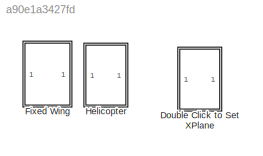
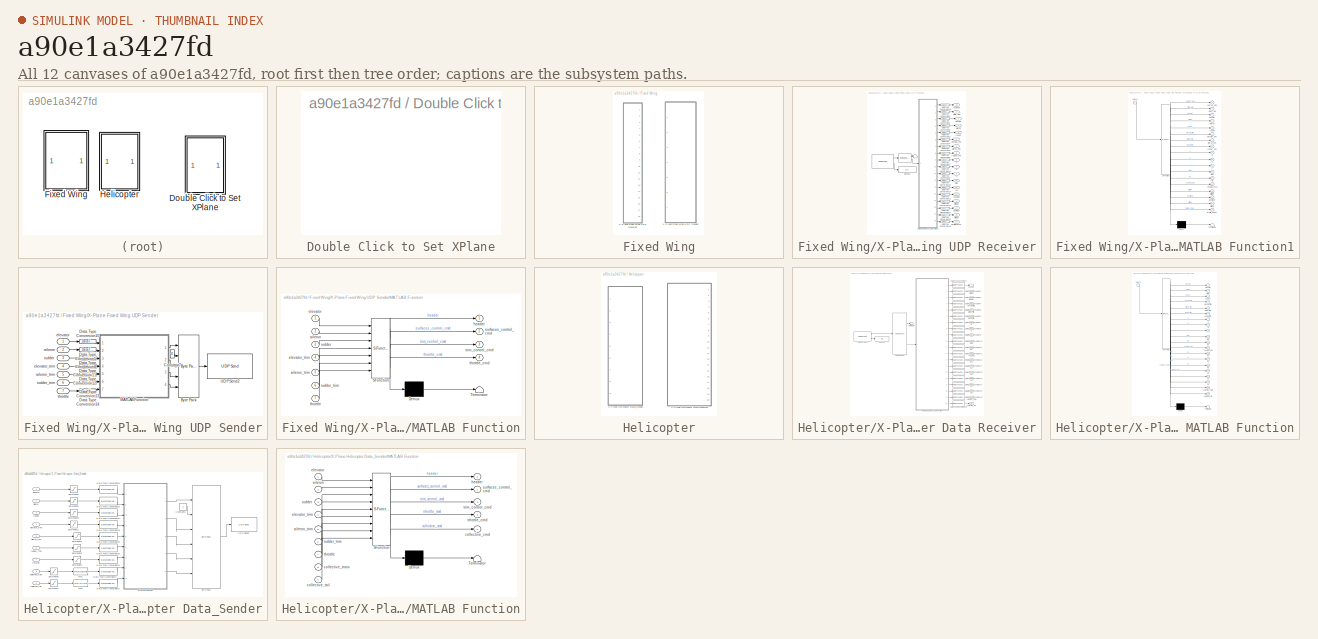
[diagram: thumbnail index - all 12 canvases of the model, root first then tree order]
MODEL slx_a90e1a3427fd
KIND library
BLOCK [SubSystem] Double Click to Set XPlane
  FunctionWithSeparateData = off
  MaskHideContents = off
  MinAlgLoopOccurrences = off
  Opaque = off
  OpenFcn = selecting_parameters()
  Ports = []
  PropExecContextOutsideSubsystem = off
  RTWSystemCode = Auto
  RequestExecContextInheritance = off
BLOCK [SubSystem] Fixed Wing
  FunctionWithSeparateData = off
  MaskHideContents = off
  MinAlgLoopOccurrences = off
  Opaque = off
  Ports = []
  PropExecContextOutsideSubsystem = off
  RTWSystemCode = Auto
  RequestExecContextInheritance = off
BLOCK [SubSystem] Fixed Wing/X-Plane Fixed Wing UDP Receiver
  FunctionWithSeparateData = off
  MaskHideContents = off
  MinAlgLoopOccurrences = off
  Opaque = off
  Ports = [0, 18]
  PropExecContextOutsideSubsystem = off
  RTWSystemCode = Auto
  RequestExecContextInheritance = off
BLOCK [Terminator] Fixed Wing/X-Plane Fixed Wing UDP Receiver/ 
BLOCK [Reference] Fixed Wing/X-Plane Fixed Wing UDP Receiver/      REF=dspnetwork/UDP Receive
  Ports = [0, 2]
  SourceBlock = dspnetwork/UDP Receive
  SourceType = UDP Receive
  blockPlatform = WINDOWS
  blockingTime = 20
  dims = 293
  isVarSize = off
  localPort = port_number
  localURL = '0.0.0.0'
  recvBufferSize = 8192
  remotePort = -1
  remoteURL = ip_adress
  sampletime = 0.02
  showBlockingTime = on
  signalDatatype = uint8
BLOCK [Reference] Fixed Wing/X-Plane Fixed Wing UDP Receiver/       REF=etargetslib/Byte Unpack
  Ports = [1, 2]
  SourceBlock = etargetslib/Byte Unpack
  SourceType = Byte Unpack
  byteAlign = 1
  datatypes = {'uint8','single'}
  dimensions = {5,[9,8]}
BLOCK [Outport] Fixed Wing/X-Plane Fixed Wing UDP Receiver/AirSpeed
  IconDisplay = Port number
  Port = 18
BLOCK [Outport] Fixed Wing/X-Plane Fixed Wing UDP Receiver/Climb_rate
  IconDisplay = Port number
  Port = 17
BLOCK [DataTypeConversion] Fixed Wing/X-Plane Fixed Wing UDP Receiver/Data Type Conversion1
  OutDataTypeStr = double
  RndMeth = Floor
BLOCK [DataTypeConversion] Fixed Wing/X-Plane Fixed Wing UDP Receiver/Data Type Conversion10
  OutDataTypeStr = double
  RndMeth = Floor
BLOCK [DataTypeConversion] Fixed Wing/X-Plane Fixed Wing UDP Receiver/Data Type Conversion11
  OutDataTypeStr = double
  RndMeth = Floor
BLOCK [DataTypeConversion] Fixed Wing/X-Plane Fixed Wing UDP Receiver/Data Type Conversion12
  OutDataTypeStr = double
  RndMeth = Floor
BLOCK [DataTypeConversion] Fixed Wing/X-Plane Fixed Wing UDP Receiver/Data Type Conversion13
  OutDataTypeStr = double
  RndMeth = Floor
BLOCK [DataTypeConversion] Fixed Wing/X-Plane Fixed Wing UDP Receiver/Data Type Conversion14
  OutDataTypeStr = double
  RndMeth = Floor
BLOCK [DataTypeConversion] Fixed Wing/X-Plane Fixed Wing UDP Receiver/Data Type Conversion15
  OutDataTypeStr = double
  RndMeth = Floor
BLOCK [DataTypeConversion] Fixed Wing/X-Plane Fixed Wing UDP Receiver/Data Type Conversion16
  OutDataTypeStr = double
  RndMeth = Floor
BLOCK [DataTypeConversion] Fixed Wing/X-Plane Fixed Wing UDP Receiver/Data Type Conversion17
  OutDataTypeStr = double
  RndMeth = Floor
BLOCK [DataTypeConversion] Fixed Wing/X-Plane Fixed Wing UDP Receiver/Data Type Conversion2
  OutDataTypeStr = double
  RndMeth = Floor
BLOCK [DataTypeConversion] Fixed Wing/X-Plane Fixed Wing UDP Receiver/Data Type Conversion21
  OutDataTypeStr = double
  RndMeth = Floor
BLOCK [DataTypeConversion] Fixed Wing/X-Plane Fixed Wing UDP Receiver/Data Type Conversion3
  OutDataTypeStr = double
  RndMeth = Floor
BLOCK [DataTypeConversion] Fixed Wing/X-Plane Fixed Wing UDP Receiver/Data Type Conversion4
  OutDataTypeStr = double
  RndMeth = Floor
BLOCK [DataTypeConversion] Fixed Wing/X-Plane Fixed Wing UDP Receiver/Data Type Conversion5
  OutDataTypeStr = double
  RndMeth = Floor
BLOCK [DataTypeConversion] Fixed Wing/X-Plane Fixed Wing UDP Receiver/Data Type Conversion6
  OutDataTypeStr = double
  RndMeth = Floor
BLOCK [DataTypeConversion] Fixed Wing/X-Plane Fixed Wing UDP Receiver/Data Type Conversion7
  OutDataTypeStr = double
  RndMeth = Floor
BLOCK [DataTypeConversion] Fixed Wing/X-Plane Fixed Wing UDP Receiver/Data Type Conversion8
  OutDataTypeStr = double
  RndMeth = Floor
BLOCK [DataTypeConversion] Fixed Wing/X-Plane Fixed Wing UDP Receiver/Data Type Conversion9
  OutDataTypeStr = double
  RndMeth = Floor
BLOCK [Display] Fixed Wing/X-Plane Fixed Wing UDP Receiver/Debug1 
  Decimation = 1
  Lockdown = off
  Ports = [1]
BLOCK [SubSystem] Fixed Wing/X-Plane Fixed Wing UDP Receiver/Embedded MATLAB Function1
  ErrorFcn = Stateflow.Translate.translate
  FunctionWithSeparateData = off
  MaskHideContents = off
  MinAlgLoopOccurrences = off
  Opaque = off
  PermitHierarchicalResolution = ExplicitOnly
  Ports = [1, 18]
  PropExecContextOutsideSubsystem = off
  RTWSystemCode = Auto
  RequestExecContextInheritance = off
  SFBlockType = MATLAB Function
  TreatAsAtomicUnit = on
BLOCK [Demux] Fixed Wing/X-Plane Fixed Wing UDP Receiver/Embedded MATLAB Function1/ Demux 
  Outputs = 1
  Ports = [1, 1]
BLOCK [S-Function] Fixed Wing/X-Plane Fixed Wing UDP Receiver/Embedded MATLAB Function1/ SFunction 
  EnableBusSupport = on
  FunctionName = sf_sfun
  PortCounts = [1 19]
  Ports = [1, 19]
  Tag = Stateflow S-Function X_Plane_Communication_Library 1
BLOCK [Terminator] Fixed Wing/X-Plane Fixed Wing UDP Receiver/Embedded MATLAB Function1/ Terminator 
BLOCK [Outport] Fixed Wing/X-Plane Fixed Wing UDP Receiver/Embedded MATLAB Function1/aileron
  IconDisplay = Port number
  Port = 4
BLOCK [Outport] Fixed Wing/X-Plane Fixed Wing UDP Receiver/Embedded MATLAB Function1/aileron_trim
  IconDisplay = Port number
  Port = 7
BLOCK [Outport] Fixed Wing/X-Plane Fixed Wing UDP Receiver/Embedded MATLAB Function1/altitude
  IconDisplay = Port number
  Port = 17
BLOCK [Outport] Fixed Wing/X-Plane Fixed Wing UDP Receiver/Embedded MATLAB Function1/climb_rate
  IconDisplay = Port number
  Port = 2
BLOCK [Inport] Fixed Wing/X-Plane Fixed Wing UDP Receiver/Embedded MATLAB Function1/data_in
  IconDisplay = Port number
BLOCK [Outport] Fixed Wing/X-Plane Fixed Wing UDP Receiver/Embedded MATLAB Function1/elevator
  IconDisplay = Port number
  Port = 3
BLOCK [Outport] Fixed Wing/X-Plane Fixed Wing UDP Receiver/Embedded MATLAB Function1/elevator_trim
  IconDisplay = Port number
  Port = 6
BLOCK [Outport] Fixed Wing/X-Plane Fixed Wing UDP Receiver/Embedded MATLAB Function1/heading_true
  IconDisplay = Port number
  Port = 14
BLOCK [Outport] Fixed Wing/X-Plane Fixed Wing UDP Receiver/Embedded MATLAB Function1/latitutde
  IconDisplay = Port number
  Port = 15
BLOCK [Outport] Fixed Wing/X-Plane Fixed Wing UDP Receiver/Embedded MATLAB Function1/longitude
  IconDisplay = Port number
  Port = 16
BLOCK [Outport] Fixed Wing/X-Plane Fixed Wing UDP Receiver/Embedded MATLAB Function1/p
  IconDisplay = Port number
  Port = 10
BLOCK [Outport] Fixed Wing/X-Plane Fixed Wing UDP Receiver/Embedded MATLAB Function1/pitch
  IconDisplay = Port number
  Port = 12
BLOCK [Outport] Fixed Wing/X-Plane Fixed Wing UDP Receiver/Embedded MATLAB Function1/q
  IconDisplay = Port number
  Port = 9
BLOCK [Outport] Fixed Wing/X-Plane Fixed Wing UDP Receiver/Embedded MATLAB Function1/r
  IconDisplay = Port number
  Port = 11
BLOCK [Outport] Fixed Wing/X-Plane Fixed Wing UDP Receiver/Embedded MATLAB Function1/roll
  IconDisplay = Port number
  Port = 13
BLOCK [Outport] Fixed Wing/X-Plane Fixed Wing UDP Receiver/Embedded MATLAB Function1/rudder
  IconDisplay = Port number
  Port = 5
BLOCK [Outport] Fixed Wing/X-Plane Fixed Wing UDP Receiver/Embedded MATLAB Function1/rudder_trim
  IconDisplay = Port number
  Port = 8
BLOCK [Outport] Fixed Wing/X-Plane Fixed Wing UDP Receiver/Embedded MATLAB Function1/throttle_actual
  IconDisplay = Port number
  Port = 18
BLOCK [Outport] Fixed Wing/X-Plane Fixed Wing UDP Receiver/Embedded MATLAB Function1/velTrue_ktas
  IconDisplay = Port number
BLOCK [Outport] Fixed Wing/X-Plane Fixed Wing UDP Receiver/aileron
  IconDisplay = Port number
  Port = 2
BLOCK [Outport] Fixed Wing/X-Plane Fixed Wing UDP Receiver/aileron_trim
  IconDisplay = Port number
  Port = 5
BLOCK [Outport] Fixed Wing/X-Plane Fixed Wing UDP Receiver/altitude
  IconDisplay = Port number
  Port = 15
BLOCK [Outport] Fixed Wing/X-Plane Fixed Wing UDP Receiver/elevator 
  IconDisplay = Port number
BLOCK [Outport] Fixed Wing/X-Plane Fixed Wing UDP Receiver/elevator_trim
  IconDisplay = Port number
  Port = 4
BLOCK [Outport] Fixed Wing/X-Plane Fixed Wing UDP Receiver/heading
  IconDisplay = Port number
  Port = 12
BLOCK [Outport] Fixed Wing/X-Plane Fixed Wing UDP Receiver/latitude
  IconDisplay = Port number
  Port = 13
BLOCK [Outport] Fixed Wing/X-Plane Fixed Wing UDP Receiver/longitude
  IconDisplay = Port number
  Port = 14
BLOCK [Outport] Fixed Wing/X-Plane Fixed Wing UDP Receiver/p
  IconDisplay = Port number
  Port = 8
BLOCK [Outport] Fixed Wing/X-Plane Fixed Wing UDP Receiver/pitch
  IconDisplay = Port number
  Port = 10
BLOCK [Outport] Fixed Wing/X-Plane Fixed Wing UDP Receiver/q
  IconDisplay = Port number
  Port = 7
BLOCK [Outport] Fixed Wing/X-Plane Fixed Wing UDP Receiver/r
  IconDisplay = Port number
  Port = 9
BLOCK [Outport] Fixed Wing/X-Plane Fixed Wing UDP Receiver/roll
  IconDisplay = Port number
  Port = 11
BLOCK [Outport] Fixed Wing/X-Plane Fixed Wing UDP Receiver/rudder
  IconDisplay = Port number
  Port = 3
BLOCK [Outport] Fixed Wing/X-Plane Fixed Wing UDP Receiver/rudder_trim
  IconDisplay = Port number
  Port = 6
BLOCK [Outport] Fixed Wing/X-Plane Fixed Wing UDP Receiver/throttle sensor
  IconDisplay = Port number
  Port = 16
BLOCK [SubSystem] Fixed Wing/X-Plane Fixed Wing UDP Sender
  FunctionWithSeparateData = off
  MaskHideContents = off
  MinAlgLoopOccurrences = off
  Opaque = off
  Ports = [7]
  PropExecContextOutsideSubsystem = off
  RTWSystemCode = Auto
  RequestExecContextInheritance = off
BLOCK [Reference] Fixed Wing/X-Plane Fixed Wing UDP Sender/Byte Pack  REF=etargetslib/Byte Pack
  Ports = [5, 1]
  SourceBlock = etargetslib/Byte Pack
  SourceType = Byte pack
  byteAlign = 1
  datatypes = {'single','uint8','single','single','single'}
BLOCK [Constant] Fixed Wing/X-Plane Fixed Wing UDP Sender/Constant7
  OutDataTypeStr = uint8
  Value = 0
BLOCK [DataTypeConversion] Fixed Wing/X-Plane Fixed Wing UDP Sender/Data Type Conversion10
  OutDataTypeStr = single
  RndMeth = Floor
BLOCK [DataTypeConversion] Fixed Wing/X-Plane Fixed Wing UDP Sender/Data Type Conversion11
  OutDataTypeStr = single
  RndMeth = Floor
BLOCK [DataTypeConversion] Fixed Wing/X-Plane Fixed Wing UDP Sender/Data Type Conversion12
  OutDataTypeStr = single
  RndMeth = Floor
BLOCK [DataTypeConversion] Fixed Wing/X-Plane Fixed Wing UDP Sender/Data Type Conversion13
  OutDataTypeStr = single
  RndMeth = Floor
BLOCK [DataTypeConversion] Fixed Wing/X-Plane Fixed Wing UDP Sender/Data Type Conversion14
  OutDataTypeStr = single
  RndMeth = Floor
BLOCK [DataTypeConversion] Fixed Wing/X-Plane Fixed Wing UDP Sender/Data Type Conversion5
  OutDataTypeStr = single
  RndMeth = Floor
BLOCK [DataTypeConversion] Fixed Wing/X-Plane Fixed Wing UDP Sender/Data Type Conversion8
  OutDataTypeStr = single
  RndMeth = Floor
BLOCK [SubSystem] Fixed Wing/X-Plane Fixed Wing UDP Sender/MATLAB Function
  ErrorFcn = Stateflow.Translate.translate
  FunctionWithSeparateData = off
  MaskHideContents = off
  MinAlgLoopOccurrences = off
  Opaque = off
  PermitHierarchicalResolution = ExplicitOnly
  Ports = [7, 4]
  PropExecContextOutsideSubsystem = off
  RTWSystemCode = Auto
  RequestExecContextInheritance = off
  SFBlockType = MATLAB Function
  TreatAsAtomicUnit = on
BLOCK [Demux] Fixed Wing/X-Plane Fixed Wing UDP Sender/MATLAB Function/ Demux 
  Outputs = 1
  Ports = [1, 1]
BLOCK [S-Function] Fixed Wing/X-Plane Fixed Wing UDP Sender/MATLAB Function/ SFunction 
  EnableBusSupport = on
  FunctionName = sf_sfun
  PortCounts = [7 5]
  Ports = [7, 5]
  Tag = Stateflow S-Function X_Plane_Communication_Library 4
BLOCK [Terminator] Fixed Wing/X-Plane Fixed Wing UDP Sender/MATLAB Function/ Terminator 
BLOCK [Inport] Fixed Wing/X-Plane Fixed Wing UDP Sender/MATLAB Function/aileron
  IconDisplay = Port number
  Port = 2
BLOCK [Inport] Fixed Wing/X-Plane Fixed Wing UDP Sender/MATLAB Function/aileron_trim
  IconDisplay = Port number
  Port = 5
BLOCK [Inport] Fixed Wing/X-Plane Fixed Wing UDP Sender/MATLAB Function/elevator
  IconDisplay = Port number
BLOCK [Inport] Fixed Wing/X-Plane Fixed Wing UDP Sender/MATLAB Function/elevator_trim
  IconDisplay = Port number
  Port = 4
BLOCK [Outport] Fixed Wing/X-Plane Fixed Wing UDP Sender/MATLAB Function/header
  IconDisplay = Port number
BLOCK [Inport] Fixed Wing/X-Plane Fixed Wing UDP Sender/MATLAB Function/rudder
  IconDisplay = Port number
  Port = 3
BLOCK [Inport] Fixed Wing/X-Plane Fixed Wing UDP Sender/MATLAB Function/rudder_trim
  IconDisplay = Port number
  Port = 6
BLOCK [Outport] Fixed Wing/X-Plane Fixed Wing UDP Sender/MATLAB Function/surfaces_control_cmd
  IconDisplay = Port number
  Port = 2
BLOCK [Inport] Fixed Wing/X-Plane Fixed Wing UDP Sender/MATLAB Function/throttle
  IconDisplay = Port number
  Port = 7
BLOCK [Outport] Fixed Wing/X-Plane Fixed Wing UDP Sender/MATLAB Function/throttle_cmd
  IconDisplay = Port number
  Port = 4
BLOCK [Outport] Fixed Wing/X-Plane Fixed Wing UDP Sender/MATLAB Function/trim_control_cmd
  IconDisplay = Port number
  Port = 3
BLOCK [Reference] Fixed Wing/X-Plane Fixed Wing UDP Sender/UDP Send2  REF=dspnetwork/UDP Send
  Ports = [1]
  SourceBlock = dspnetwork/UDP Send
  SourceType = UDP Send
  blockPlatform = HOST
  localPort = -1
  localPortSource = Automatically determine
  localURL = '255.255.255.255'
  remotePort = port_number
  remoteURL = ip_adress
  sampletime = -1
  separateLengthPort = 0
BLOCK [Inport] Fixed Wing/X-Plane Fixed Wing UDP Sender/aileron
  IconDisplay = Port number
  Port = 2
BLOCK [Inport] Fixed Wing/X-Plane Fixed Wing UDP Sender/aileron_trim
  IconDisplay = Port number
  Port = 5
BLOCK [Inport] Fixed Wing/X-Plane Fixed Wing UDP Sender/elevator
  IconDisplay = Port number
BLOCK [Inport] Fixed Wing/X-Plane Fixed Wing UDP Sender/elevator_trim
  IconDisplay = Port number
  Port = 4
BLOCK [Inport] Fixed Wing/X-Plane Fixed Wing UDP Sender/rudder
  IconDisplay = Port number
  Port = 3
BLOCK [Inport] Fixed Wing/X-Plane Fixed Wing UDP Sender/rudder_trim
  IconDisplay = Port number
  Port = 6
BLOCK [Inport] Fixed Wing/X-Plane Fixed Wing UDP Sender/throttle
  IconDisplay = Port number
  Port = 7
BLOCK [SubSystem] Helicopter
  FunctionWithSeparateData = off
  MaskHideContents = off
  MinAlgLoopOccurrences = off
  Opaque = off
  Ports = []
  PropExecContextOutsideSubsystem = off
  RTWSystemCode = Auto
  RequestExecContextInheritance = off
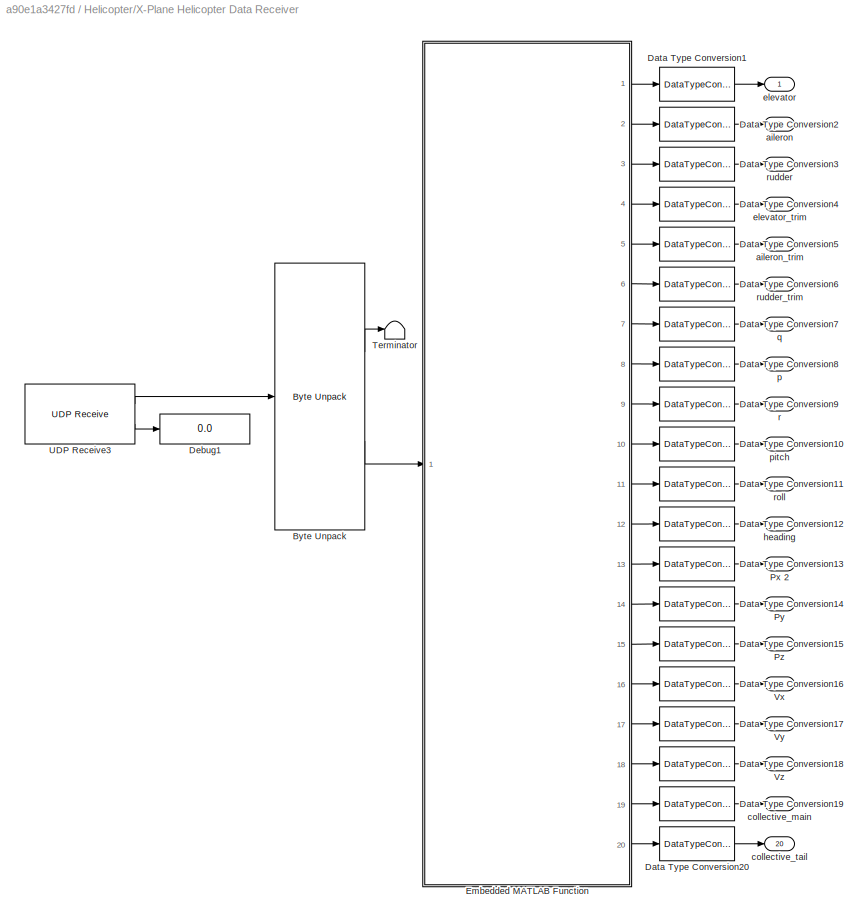
BLOCK [SubSystem] Helicopter/X-Plane Helicopter Data Receiver
  AncestorBlock = DU2SRI_Heli_Sim/X-Plane Communication Blockset\n/X-Plane Data Receiver
  FunctionWithSeparateData = off
  MaskHideContents = off
  MinAlgLoopOccurrences = off
  Opaque = off
  Ports = [0, 20]
  PropExecContextOutsideSubsystem = off
  RTWSystemCode = Auto
  RequestExecContextInheritance = off
BLOCK [Reference] Helicopter/X-Plane Helicopter Data Receiver/Byte Unpack  REF=etargetslib/Byte Unpack
  Ports = [1, 2]
  SourceBlock = etargetslib/Byte Unpack
  SourceType = Byte Unpack
  byteAlign = 1
  datatypes = {'uint8','single'}
  dimensions = {5,[9,6]}
BLOCK [DataTypeConversion] Helicopter/X-Plane Helicopter Data Receiver/Data Type Conversion1
  OutDataTypeStr = double
  RndMeth = Floor
BLOCK [DataTypeConversion] Helicopter/X-Plane Helicopter Data Receiver/Data Type Conversion10
  OutDataTypeStr = double
  RndMeth = Floor
BLOCK [DataTypeConversion] Helicopter/X-Plane Helicopter Data Receiver/Data Type Conversion11
  OutDataTypeStr = double
  RndMeth = Floor
BLOCK [DataTypeConversion] Helicopter/X-Plane Helicopter Data Receiver/Data Type Conversion12
  OutDataTypeStr = double
  RndMeth = Floor
BLOCK [DataTypeConversion] Helicopter/X-Plane Helicopter Data Receiver/Data Type Conversion13
  OutDataTypeStr = double
  RndMeth = Floor
BLOCK [DataTypeConversion] Helicopter/X-Plane Helicopter Data Receiver/Data Type Conversion14
  OutDataTypeStr = double
  RndMeth = Floor
BLOCK [DataTypeConversion] Helicopter/X-Plane Helicopter Data Receiver/Data Type Conversion15
  OutDataTypeStr = double
  RndMeth = Floor
BLOCK [DataTypeConversion] Helicopter/X-Plane Helicopter Data Receiver/Data Type Conversion16
  OutDataTypeStr = double
  RndMeth = Floor
BLOCK [DataTypeConversion] Helicopter/X-Plane Helicopter Data Receiver/Data Type Conversion17
  OutDataTypeStr = double
  RndMeth = Floor
BLOCK [DataTypeConversion] Helicopter/X-Plane Helicopter Data Receiver/Data Type Conversion18
  OutDataTypeStr = double
  RndMeth = Floor
BLOCK [DataTypeConversion] Helicopter/X-Plane Helicopter Data Receiver/Data Type Conversion19
  OutDataTypeStr = double
  RndMeth = Floor
BLOCK [DataTypeConversion] Helicopter/X-Plane Helicopter Data Receiver/Data Type Conversion2
  OutDataTypeStr = double
  RndMeth = Floor
BLOCK [DataTypeConversion] Helicopter/X-Plane Helicopter Data Receiver/Data Type Conversion20
  OutDataTypeStr = double
  RndMeth = Floor
BLOCK [DataTypeConversion] Helicopter/X-Plane Helicopter Data Receiver/Data Type Conversion3
  OutDataTypeStr = double
  RndMeth = Floor
BLOCK [DataTypeConversion] Helicopter/X-Plane Helicopter Data Receiver/Data Type Conversion4
  OutDataTypeStr = double
  RndMeth = Floor
BLOCK [DataTypeConversion] Helicopter/X-Plane Helicopter Data Receiver/Data Type Conversion5
  OutDataTypeStr = double
  RndMeth = Floor
BLOCK [DataTypeConversion] Helicopter/X-Plane Helicopter Data Receiver/Data Type Conversion6
  OutDataTypeStr = double
  RndMeth = Floor
BLOCK [DataTypeConversion] Helicopter/X-Plane Helicopter Data Receiver/Data Type Conversion7
  OutDataTypeStr = double
  RndMeth = Floor
BLOCK [DataTypeConversion] Helicopter/X-Plane Helicopter Data Receiver/Data Type Conversion8
  OutDataTypeStr = double
  RndMeth = Floor
BLOCK [DataTypeConversion] Helicopter/X-Plane Helicopter Data Receiver/Data Type Conversion9
  OutDataTypeStr = double
  RndMeth = Floor
BLOCK [Display] Helicopter/X-Plane Helicopter Data Receiver/Debug1 
  Decimation = 1
  Lockdown = off
  Ports = [1]
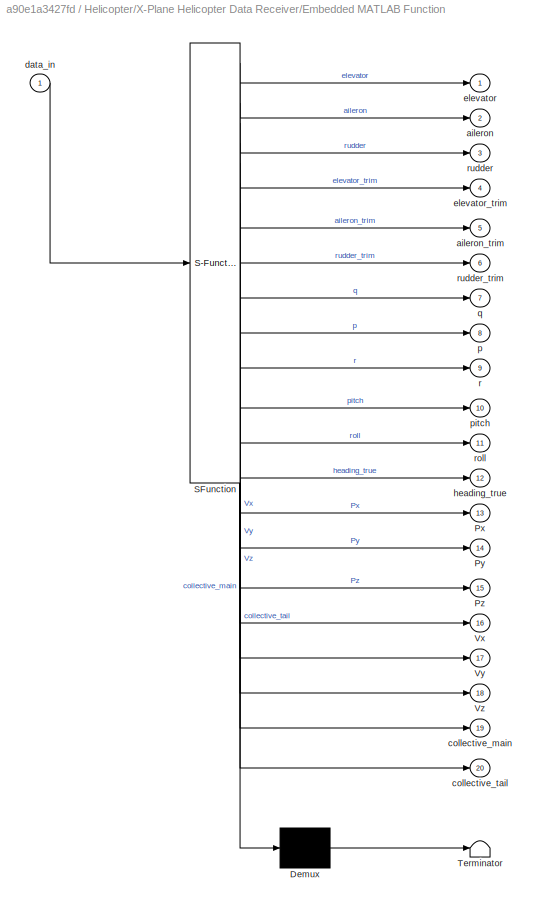
BLOCK [SubSystem] Helicopter/X-Plane Helicopter Data Receiver/Embedded MATLAB Function
  ErrorFcn = Stateflow.Translate.translate
  FunctionWithSeparateData = off
  MaskHideContents = off
  MinAlgLoopOccurrences = off
  Opaque = off
  PermitHierarchicalResolution = ExplicitOnly
  Ports = [1, 20]
  PropExecContextOutsideSubsystem = off
  RTWSystemCode = Auto
  RequestExecContextInheritance = off
  SFBlockType = MATLAB Function
  TreatAsAtomicUnit = on
BLOCK [Demux] Helicopter/X-Plane Helicopter Data Receiver/Embedded MATLAB Function/ Demux 
  Outputs = 1
  Ports = [1, 1]
BLOCK [S-Function] Helicopter/X-Plane Helicopter Data Receiver/Embedded MATLAB Function/ SFunction 
  EnableBusSupport = off
  FunctionName = sf_sfun
  PortCounts = [1 21]
  Ports = [1, 21]
  Tag = Stateflow S-Function X_Plane_Communication_Library 13
BLOCK [Terminator] Helicopter/X-Plane Helicopter Data Receiver/Embedded MATLAB Function/ Terminator 
BLOCK [Outport] Helicopter/X-Plane Helicopter Data Receiver/Embedded MATLAB Function/Px
  IconDisplay = Port number
  Port = 13
BLOCK [Outport] Helicopter/X-Plane Helicopter Data Receiver/Embedded MATLAB Function/Py
  IconDisplay = Port number
  Port = 14
BLOCK [Outport] Helicopter/X-Plane Helicopter Data Receiver/Embedded MATLAB Function/Pz
  IconDisplay = Port number
  Port = 15
BLOCK [Outport] Helicopter/X-Plane Helicopter Data Receiver/Embedded MATLAB Function/Vx
  IconDisplay = Port number
  Port = 16
BLOCK [Outport] Helicopter/X-Plane Helicopter Data Receiver/Embedded MATLAB Function/Vy
  IconDisplay = Port number
  Port = 17
BLOCK [Outport] Helicopter/X-Plane Helicopter Data Receiver/Embedded MATLAB Function/Vz
  IconDisplay = Port number
  Port = 18
BLOCK [Outport] Helicopter/X-Plane Helicopter Data Receiver/Embedded MATLAB Function/aileron
  IconDisplay = Port number
  Port = 2
BLOCK [Outport] Helicopter/X-Plane Helicopter Data Receiver/Embedded MATLAB Function/aileron_trim
  IconDisplay = Port number
  Port = 5
BLOCK [Outport] Helicopter/X-Plane Helicopter Data Receiver/Embedded MATLAB Function/collective_main
  IconDisplay = Port number
  Port = 19
BLOCK [Outport] Helicopter/X-Plane Helicopter Data Receiver/Embedded MATLAB Function/collective_tail
  IconDisplay = Port number
  Port = 20
BLOCK [Inport] Helicopter/X-Plane Helicopter Data Receiver/Embedded MATLAB Function/data_in
  IconDisplay = Port number
BLOCK [Outport] Helicopter/X-Plane Helicopter Data Receiver/Embedded MATLAB Function/elevator
  IconDisplay = Port number
BLOCK [Outport] Helicopter/X-Plane Helicopter Data Receiver/Embedded MATLAB Function/elevator_trim
  IconDisplay = Port number
  Port = 4
BLOCK [Outport] Helicopter/X-Plane Helicopter Data Receiver/Embedded MATLAB Function/heading_true
  IconDisplay = Port number
  Port = 12
BLOCK [Outport] Helicopter/X-Plane Helicopter Data Receiver/Embedded MATLAB Function/p
  IconDisplay = Port number
  Port = 8
BLOCK [Outport] Helicopter/X-Plane Helicopter Data Receiver/Embedded MATLAB Function/pitch
  IconDisplay = Port number
  Port = 10
BLOCK [Outport] Helicopter/X-Plane Helicopter Data Receiver/Embedded MATLAB Function/q
  IconDisplay = Port number
  Port = 7
BLOCK [Outport] Helicopter/X-Plane Helicopter Data Receiver/Embedded MATLAB Function/r
  IconDisplay = Port number
  Port = 9
BLOCK [Outport] Helicopter/X-Plane Helicopter Data Receiver/Embedded MATLAB Function/roll
  IconDisplay = Port number
  Port = 11
BLOCK [Outport] Helicopter/X-Plane Helicopter Data Receiver/Embedded MATLAB Function/rudder
  IconDisplay = Port number
  Port = 3
BLOCK [Outport] Helicopter/X-Plane Helicopter Data Receiver/Embedded MATLAB Function/rudder_trim
  IconDisplay = Port number
  Port = 6
BLOCK [Outport] Helicopter/X-Plane Helicopter Data Receiver/Px 2
  IconDisplay = Port number
  Port = 13
BLOCK [Outport] Helicopter/X-Plane Helicopter Data Receiver/Py
  IconDisplay = Port number
  Port = 14
BLOCK [Outport] Helicopter/X-Plane Helicopter Data Receiver/Pz
  IconDisplay = Port number
  Port = 15
BLOCK [Terminator] Helicopter/X-Plane Helicopter Data Receiver/Terminator
BLOCK [Reference] Helicopter/X-Plane Helicopter Data Receiver/UDP Receive3  REF=dspnetwork/UDP Receive
  Ports = [0, 2]
  SourceBlock = dspnetwork/UDP Receive
  SourceType = UDP Receive
  blockPlatform = WINDOWS
  blockingTime = 20
  dims = 221
  isVarSize = off
  localPort = port_number
  localURL = '0.0.0.0'
  recvBufferSize = 8192
  remotePort = -1
  remoteURL = ip_adress
  sampletime = 0
  showBlockingTime = on
  signalDatatype = uint8
BLOCK [Outport] Helicopter/X-Plane Helicopter Data Receiver/Vx
  IconDisplay = Port number
  Port = 16
BLOCK [Outport] Helicopter/X-Plane Helicopter Data Receiver/Vy
  IconDisplay = Port number
  Port = 17
BLOCK [Outport] Helicopter/X-Plane Helicopter Data Receiver/Vz
  IconDisplay = Port number
  Port = 18
BLOCK [Outport] Helicopter/X-Plane Helicopter Data Receiver/aileron
  IconDisplay = Port number
  Port = 2
BLOCK [Outport] Helicopter/X-Plane Helicopter Data Receiver/aileron_trim
  IconDisplay = Port number
  Port = 5
BLOCK [Outport] Helicopter/X-Plane Helicopter Data Receiver/collective_main
  IconDisplay = Port number
  Port = 19
BLOCK [Outport] Helicopter/X-Plane Helicopter Data Receiver/collective_tail
  IconDisplay = Port number
  Port = 20
BLOCK [Outport] Helicopter/X-Plane Helicopter Data Receiver/elevator 
  IconDisplay = Port number
BLOCK [Outport] Helicopter/X-Plane Helicopter Data Receiver/elevator_trim
  IconDisplay = Port number
  Port = 4
BLOCK [Outport] Helicopter/X-Plane Helicopter Data Receiver/heading
  IconDisplay = Port number
  Port = 12
BLOCK [Outport] Helicopter/X-Plane Helicopter Data Receiver/p
  IconDisplay = Port number
  Port = 8
BLOCK [Outport] Helicopter/X-Plane Helicopter Data Receiver/pitch
  IconDisplay = Port number
  Port = 10
BLOCK [Outport] Helicopter/X-Plane Helicopter Data Receiver/q
  IconDisplay = Port number
  Port = 7
BLOCK [Outport] Helicopter/X-Plane Helicopter Data Receiver/r
  IconDisplay = Port number
  Port = 9
BLOCK [Outport] Helicopter/X-Plane Helicopter Data Receiver/roll
  IconDisplay = Port number
  Port = 11
BLOCK [Outport] Helicopter/X-Plane Helicopter Data Receiver/rudder
  IconDisplay = Port number
  Port = 3
BLOCK [Outport] Helicopter/X-Plane Helicopter Data Receiver/rudder_trim
  IconDisplay = Port number
  Port = 6
BLOCK [SubSystem] Helicopter/X-Plane Helicopter Data_Sender
  AncestorBlock = DU2SRI_Heli_Sim/X-Plane Communication Blockset\n/X-Plane Data_Sender
  FunctionWithSeparateData = off
  MaskHideContents = off
  MinAlgLoopOccurrences = off
  Opaque = off
  Ports = [9]
  PropExecContextOutsideSubsystem = off
  RTWSystemCode = Auto
  RequestExecContextInheritance = off
BLOCK [Reference] Helicopter/X-Plane Helicopter Data_Sender/Byte Pack  REF=etargetslib/Byte Pack
  Ports = [6, 1]
  SourceBlock = etargetslib/Byte Pack
  SourceType = Byte pack
  byteAlign = 1
  datatypes = {'single','uint8','single','single','single','single'}
BLOCK [Constant] Helicopter/X-Plane Helicopter Data_Sender/Constant5
  OutDataTypeStr = uint8
  Value = 0
BLOCK [DataTypeConversion] Helicopter/X-Plane Helicopter Data_Sender/Data Type Conversion10
  OutDataTypeStr = single
  RndMeth = Floor
BLOCK [DataTypeConversion] Helicopter/X-Plane Helicopter Data_Sender/Data Type Conversion11
  OutDataTypeStr = single
  RndMeth = Floor
BLOCK [DataTypeConversion] Helicopter/X-Plane Helicopter Data_Sender/Data Type Conversion12
  OutDataTypeStr = single
  RndMeth = Floor
BLOCK [DataTypeConversion] Helicopter/X-Plane Helicopter Data_Sender/Data Type Conversion13
  OutDataTypeStr = single
  RndMeth = Floor
BLOCK [DataTypeConversion] Helicopter/X-Plane Helicopter Data_Sender/Data Type Conversion14
  OutDataTypeStr = single
  RndMeth = Floor
BLOCK [DataTypeConversion] Helicopter/X-Plane Helicopter Data_Sender/Data Type Conversion15
  OutDataTypeStr = single
  RndMeth = Floor
BLOCK [DataTypeConversion] Helicopter/X-Plane Helicopter Data_Sender/Data Type Conversion16
  OutDataTypeStr = single
  RndMeth = Floor
BLOCK [DataTypeConversion] Helicopter/X-Plane Helicopter Data_Sender/Data Type Conversion17
  OutDataTypeStr = single
  RndMeth = Floor
BLOCK [DataTypeConversion] Helicopter/X-Plane Helicopter Data_Sender/Data Type Conversion18
  OutDataTypeStr = single
  RndMeth = Floor
BLOCK [Fcn] Helicopter/X-Plane Helicopter Data_Sender/Fcn2
  Expr = u*max_col_main
BLOCK [Fcn] Helicopter/X-Plane Helicopter Data_Sender/Fcn3
  Expr = ((u+1)/2)*(max_col_tail-min_col_tail)+min_col_tail
BLOCK [SubSystem] Helicopter/X-Plane Helicopter Data_Sender/MATLAB Function
  ErrorFcn = Stateflow.Translate.translate
  FunctionWithSeparateData = off
  MaskHideContents = off
  MinAlgLoopOccurrences = off
  Opaque = off
  PermitHierarchicalResolution = ExplicitOnly
  Ports = [9, 5]
  PropExecContextOutsideSubsystem = off
  RTWSystemCode = Auto
  RequestExecContextInheritance = off
  SFBlockType = MATLAB Function
  TreatAsAtomicUnit = on
BLOCK [Demux] Helicopter/X-Plane Helicopter Data_Sender/MATLAB Function/ Demux 
  Outputs = 1
  Ports = [1, 1]
BLOCK [S-Function] Helicopter/X-Plane Helicopter Data_Sender/MATLAB Function/ SFunction 
  EnableBusSupport = off
  FunctionName = sf_sfun
  PortCounts = [9 6]
  Ports = [9, 6]
  Tag = Stateflow S-Function X_Plane_Communication_Library 2
BLOCK [Terminator] Helicopter/X-Plane Helicopter Data_Sender/MATLAB Function/ Terminator 
BLOCK [Inport] Helicopter/X-Plane Helicopter Data_Sender/MATLAB Function/aileron
  IconDisplay = Port number
  Port = 2
BLOCK [Inport] Helicopter/X-Plane Helicopter Data_Sender/MATLAB Function/aileron_trim
  IconDisplay = Port number
  Port = 5
BLOCK [Outport] Helicopter/X-Plane Helicopter Data_Sender/MATLAB Function/collective_cmd
  IconDisplay = Port number
  Port = 5
BLOCK [Inport] Helicopter/X-Plane Helicopter Data_Sender/MATLAB Function/collective_main
  IconDisplay = Port number
  Port = 8
BLOCK [Inport] Helicopter/X-Plane Helicopter Data_Sender/MATLAB Function/collective_tail
  IconDisplay = Port number
  Port = 9
BLOCK [Inport] Helicopter/X-Plane Helicopter Data_Sender/MATLAB Function/elevator
  IconDisplay = Port number
BLOCK [Inport] Helicopter/X-Plane Helicopter Data_Sender/MATLAB Function/elevator_trim
  IconDisplay = Port number
  Port = 4
BLOCK [Outport] Helicopter/X-Plane Helicopter Data_Sender/MATLAB Function/header
  IconDisplay = Port number
BLOCK [Inport] Helicopter/X-Plane Helicopter Data_Sender/MATLAB Function/rudder
  IconDisplay = Port number
  Port = 3
BLOCK [Inport] Helicopter/X-Plane Helicopter Data_Sender/MATLAB Function/rudder_trim
  IconDisplay = Port number
  Port = 6
BLOCK [Outport] Helicopter/X-Plane Helicopter Data_Sender/MATLAB Function/surfaces_control_cmd
  IconDisplay = Port number
  Port = 2
BLOCK [Inport] Helicopter/X-Plane Helicopter Data_Sender/MATLAB Function/throttle
  IconDisplay = Port number
  Port = 7
BLOCK [Outport] Helicopter/X-Plane Helicopter Data_Sender/MATLAB Function/trhottle_cmd
  IconDisplay = Port number
  Port = 4
BLOCK [Outport] Helicopter/X-Plane Helicopter Data_Sender/MATLAB Function/trim_control_cmd
  IconDisplay = Port number
  Port = 3
BLOCK [Saturate] Helicopter/X-Plane Helicopter Data_Sender/Saturation1
  InputPortMap = u0
  LowerLimit = -1
  Ports = [1, 1]
  UpperLimit = +1
BLOCK [Saturate] Helicopter/X-Plane Helicopter Data_Sender/Saturation10
  InputPortMap = u0
  LowerLimit = -1
  Ports = [1, 1]
  UpperLimit = +1
BLOCK [Saturate] Helicopter/X-Plane Helicopter Data_Sender/Saturation11
  InputPortMap = u0
  LowerLimit = -1
  Ports = [1, 1]
  UpperLimit = +1
BLOCK [Saturate] Helicopter/X-Plane Helicopter Data_Sender/Saturation2
  InputPortMap = u0
  LowerLimit = -1
  Ports = [1, 1]
  UpperLimit = +1
BLOCK [Saturate] Helicopter/X-Plane Helicopter Data_Sender/Saturation3
  InputPortMap = u0
  LowerLimit = -1
  Ports = [1, 1]
  UpperLimit = +1
BLOCK [Saturate] Helicopter/X-Plane Helicopter Data_Sender/Saturation6
  InputPortMap = u0
  LowerLimit = -1
  Ports = [1, 1]
  UpperLimit = +1
BLOCK [Saturate] Helicopter/X-Plane Helicopter Data_Sender/Saturation7
  InputPortMap = u0
  LowerLimit = -1
  Ports = [1, 1]
  UpperLimit = +1
BLOCK [Saturate] Helicopter/X-Plane Helicopter Data_Sender/Saturation8
  InputPortMap = u0
  LowerLimit = -1
  Ports = [1, 1]
  UpperLimit = +1
BLOCK [Saturate] Helicopter/X-Plane Helicopter Data_Sender/Saturation9
  InputPortMap = u0
  LowerLimit = -1
  Ports = [1, 1]
  UpperLimit = +1
BLOCK [Reference] Helicopter/X-Plane Helicopter Data_Sender/UDP Send2  REF=dspnetwork/UDP Send
  Ports = [1]
  SourceBlock = dspnetwork/UDP Send
  SourceType = UDP Send
  blockPlatform = HOST
  localPort = -1
  localPortSource = Automatically determine
  localURL = '255.255.255.255'
  remotePort = port_number
  remoteURL = ip_address
  sampletime = -1
  separateLengthPort = 0
BLOCK [Inport] Helicopter/X-Plane Helicopter Data_Sender/aileron
  IconDisplay = Port number
  Port = 2
BLOCK [Inport] Helicopter/X-Plane Helicopter Data_Sender/aileron_trim
  IconDisplay = Port number
  Port = 5
BLOCK [Inport] Helicopter/X-Plane Helicopter Data_Sender/collective_main
  IconDisplay = Port number
  Port = 8
BLOCK [Inport] Helicopter/X-Plane Helicopter Data_Sender/collective_tail
  IconDisplay = Port number
  Port = 9
BLOCK [Inport] Helicopter/X-Plane Helicopter Data_Sender/elevator
  IconDisplay = Port number
BLOCK [Inport] Helicopter/X-Plane Helicopter Data_Sender/elevator_trim
  IconDisplay = Port number
  Port = 4
BLOCK [Inport] Helicopter/X-Plane Helicopter Data_Sender/rudder
  IconDisplay = Port number
  Port = 3
BLOCK [Inport] Helicopter/X-Plane Helicopter Data_Sender/rudder_trim
  IconDisplay = Port number
  Port = 6
BLOCK [Inport] Helicopter/X-Plane Helicopter Data_Sender/throttle
  IconDisplay = Port number
  Port = 7
LINE Fixed Wing/X-Plane Fixed Wing UDP Receiver/     :1 -> Fixed Wing/X-Plane Fixed Wing UDP Receiver/ :1
LINE Fixed Wing/X-Plane Fixed Wing UDP Receiver/     :2 -> Fixed Wing/X-Plane Fixed Wing UDP Receiver/Embedded MATLAB Function1:1
LINE Fixed Wing/X-Plane Fixed Wing UDP Receiver/    :1 -> Fixed Wing/X-Plane Fixed Wing UDP Receiver/     :1
LINE Fixed Wing/X-Plane Fixed Wing UDP Receiver/    :2 -> Fixed Wing/X-Plane Fixed Wing UDP Receiver/Debug1 :1
LINE Fixed Wing/X-Plane Fixed Wing UDP Receiver/Data Type Conversion10:1 -> Fixed Wing/X-Plane Fixed Wing UDP Receiver/pitch:1
LINE Fixed Wing/X-Plane Fixed Wing UDP Receiver/Data Type Conversion11:1 -> Fixed Wing/X-Plane Fixed Wing UDP Receiver/p:1
LINE Fixed Wing/X-Plane Fixed Wing UDP Receiver/Data Type Conversion12:1 -> Fixed Wing/X-Plane Fixed Wing UDP Receiver/heading:1
LINE Fixed Wing/X-Plane Fixed Wing UDP Receiver/Data Type Conversion13:1 -> Fixed Wing/X-Plane Fixed Wing UDP Receiver/latitude:1
LINE Fixed Wing/X-Plane Fixed Wing UDP Receiver/Data Type Conversion14:1 -> Fixed Wing/X-Plane Fixed Wing UDP Receiver/roll:1
LINE Fixed Wing/X-Plane Fixed Wing UDP Receiver/Data Type Conversion15:1 -> Fixed Wing/X-Plane Fixed Wing UDP Receiver/altitude:1
LINE Fixed Wing/X-Plane Fixed Wing UDP Receiver/Data Type Conversion16:1 -> Fixed Wing/X-Plane Fixed Wing UDP Receiver/throttle sensor:1
LINE Fixed Wing/X-Plane Fixed Wing UDP Receiver/Data Type Conversion17:1 -> Fixed Wing/X-Plane Fixed Wing UDP Receiver/longitude:1
LINE Fixed Wing/X-Plane Fixed Wing UDP Receiver/Data Type Conversion1:1 -> Fixed Wing/X-Plane Fixed Wing UDP Receiver/Climb_rate:1
LINE Fixed Wing/X-Plane Fixed Wing UDP Receiver/Data Type Conversion21:1 -> Fixed Wing/X-Plane Fixed Wing UDP Receiver/AirSpeed:1
LINE Fixed Wing/X-Plane Fixed Wing UDP Receiver/Data Type Conversion2:1 -> Fixed Wing/X-Plane Fixed Wing UDP Receiver/elevator :1
LINE Fixed Wing/X-Plane Fixed Wing UDP Receiver/Data Type Conversion3:1 -> Fixed Wing/X-Plane Fixed Wing UDP Receiver/rudder:1
LINE Fixed Wing/X-Plane Fixed Wing UDP Receiver/Data Type Conversion4:1 -> Fixed Wing/X-Plane Fixed Wing UDP Receiver/elevator_trim:1
LINE Fixed Wing/X-Plane Fixed Wing UDP Receiver/Data Type Conversion5:1 -> Fixed Wing/X-Plane Fixed Wing UDP Receiver/aileron:1
LINE Fixed Wing/X-Plane Fixed Wing UDP Receiver/Data Type Conversion6:1 -> Fixed Wing/X-Plane Fixed Wing UDP Receiver/rudder_trim:1
LINE Fixed Wing/X-Plane Fixed Wing UDP Receiver/Data Type Conversion7:1 -> Fixed Wing/X-Plane Fixed Wing UDP Receiver/q:1
LINE Fixed Wing/X-Plane Fixed Wing UDP Receiver/Data Type Conversion8:1 -> Fixed Wing/X-Plane Fixed Wing UDP Receiver/aileron_trim:1
LINE Fixed Wing/X-Plane Fixed Wing UDP Receiver/Data Type Conversion9:1 -> Fixed Wing/X-Plane Fixed Wing UDP Receiver/r:1
LINE Fixed Wing/X-Plane Fixed Wing UDP Receiver/Embedded MATLAB Function1:1 -> Fixed Wing/X-Plane Fixed Wing UDP Receiver/Data Type Conversion21:1
LINE Fixed Wing/X-Plane Fixed Wing UDP Receiver/Embedded MATLAB Function1:10 -> Fixed Wing/X-Plane Fixed Wing UDP Receiver/Data Type Conversion11:1
LINE Fixed Wing/X-Plane Fixed Wing UDP Receiver/Embedded MATLAB Function1:11 -> Fixed Wing/X-Plane Fixed Wing UDP Receiver/Data Type Conversion9:1
LINE Fixed Wing/X-Plane Fixed Wing UDP Receiver/Embedded MATLAB Function1:12 -> Fixed Wing/X-Plane Fixed Wing UDP Receiver/Data Type Conversion10:1
LINE Fixed Wing/X-Plane Fixed Wing UDP Receiver/Embedded MATLAB Function1:13 -> Fixed Wing/X-Plane Fixed Wing UDP Receiver/Data Type Conversion14:1
LINE Fixed Wing/X-Plane Fixed Wing UDP Receiver/Embedded MATLAB Function1:14 -> Fixed Wing/X-Plane Fixed Wing UDP Receiver/Data Type Conversion12:1
LINE Fixed Wing/X-Plane Fixed Wing UDP Receiver/Embedded MATLAB Function1:15 -> Fixed Wing/X-Plane Fixed Wing UDP Receiver/Data Type Conversion13:1
LINE Fixed Wing/X-Plane Fixed Wing UDP Receiver/Embedded MATLAB Function1:16 -> Fixed Wing/X-Plane Fixed Wing UDP Receiver/Data Type Conversion17:1
LINE Fixed Wing/X-Plane Fixed Wing UDP Receiver/Embedded MATLAB Function1:17 -> Fixed Wing/X-Plane Fixed Wing UDP Receiver/Data Type Conversion15:1
LINE Fixed Wing/X-Plane Fixed Wing UDP Receiver/Embedded MATLAB Function1:18 -> Fixed Wing/X-Plane Fixed Wing UDP Receiver/Data Type Conversion16:1
LINE Fixed Wing/X-Plane Fixed Wing UDP Receiver/Embedded MATLAB Function1:2 -> Fixed Wing/X-Plane Fixed Wing UDP Receiver/Data Type Conversion1:1
LINE Fixed Wing/X-Plane Fixed Wing UDP Receiver/Embedded MATLAB Function1:3 -> Fixed Wing/X-Plane Fixed Wing UDP Receiver/Data Type Conversion2:1
LINE Fixed Wing/X-Plane Fixed Wing UDP Receiver/Embedded MATLAB Function1:4 -> Fixed Wing/X-Plane Fixed Wing UDP Receiver/Data Type Conversion5:1
LINE Fixed Wing/X-Plane Fixed Wing UDP Receiver/Embedded MATLAB Function1:5 -> Fixed Wing/X-Plane Fixed Wing UDP Receiver/Data Type Conversion3:1
LINE Fixed Wing/X-Plane Fixed Wing UDP Receiver/Embedded MATLAB Function1:6 -> Fixed Wing/X-Plane Fixed Wing UDP Receiver/Data Type Conversion4:1
LINE Fixed Wing/X-Plane Fixed Wing UDP Receiver/Embedded MATLAB Function1:7 -> Fixed Wing/X-Plane Fixed Wing UDP Receiver/Data Type Conversion8:1
LINE Fixed Wing/X-Plane Fixed Wing UDP Receiver/Embedded MATLAB Function1:8 -> Fixed Wing/X-Plane Fixed Wing UDP Receiver/Data Type Conversion6:1
LINE Fixed Wing/X-Plane Fixed Wing UDP Receiver/Embedded MATLAB Function1:9 -> Fixed Wing/X-Plane Fixed Wing UDP Receiver/Data Type Conversion7:1
LINE Fixed Wing/X-Plane Fixed Wing UDP Sender/Byte Pack:1 -> Fixed Wing/X-Plane Fixed Wing UDP Sender/UDP Send2:1
LINE Fixed Wing/X-Plane Fixed Wing UDP Sender/Constant7:1 -> Fixed Wing/X-Plane Fixed Wing UDP Sender/Byte Pack:2
LINE Fixed Wing/X-Plane Fixed Wing UDP Sender/Data Type Conversion10:1 -> Fixed Wing/X-Plane Fixed Wing UDP Sender/MATLAB Function:1
LINE Fixed Wing/X-Plane Fixed Wing UDP Sender/Data Type Conversion11:1 -> Fixed Wing/X-Plane Fixed Wing UDP Sender/MATLAB Function:4
LINE Fixed Wing/X-Plane Fixed Wing UDP Sender/Data Type Conversion12:1 -> Fixed Wing/X-Plane Fixed Wing UDP Sender/MATLAB Function:5
LINE Fixed Wing/X-Plane Fixed Wing UDP Sender/Data Type Conversion13:1 -> Fixed Wing/X-Plane Fixed Wing UDP Sender/MATLAB Function:6
LINE Fixed Wing/X-Plane Fixed Wing UDP Sender/Data Type Conversion14:1 -> Fixed Wing/X-Plane Fixed Wing UDP Sender/MATLAB Function:7
LINE Fixed Wing/X-Plane Fixed Wing UDP Sender/Data Type Conversion5:1 -> Fixed Wing/X-Plane Fixed Wing UDP Sender/MATLAB Function:2
LINE Fixed Wing/X-Plane Fixed Wing UDP Sender/Data Type Conversion8:1 -> Fixed Wing/X-Plane Fixed Wing UDP Sender/MATLAB Function:3
LINE Fixed Wing/X-Plane Fixed Wing UDP Sender/MATLAB Function:1 -> Fixed Wing/X-Plane Fixed Wing UDP Sender/Byte Pack:1
LINE Fixed Wing/X-Plane Fixed Wing UDP Sender/MATLAB Function:2 -> Fixed Wing/X-Plane Fixed Wing UDP Sender/Byte Pack:3
LINE Fixed Wing/X-Plane Fixed Wing UDP Sender/MATLAB Function:3 -> Fixed Wing/X-Plane Fixed Wing UDP Sender/Byte Pack:4
LINE Fixed Wing/X-Plane Fixed Wing UDP Sender/MATLAB Function:4 -> Fixed Wing/X-Plane Fixed Wing UDP Sender/Byte Pack:5
LINE Fixed Wing/X-Plane Fixed Wing UDP Sender/aileron:1 -> Fixed Wing/X-Plane Fixed Wing UDP Sender/Data Type Conversion5:1
LINE Fixed Wing/X-Plane Fixed Wing UDP Sender/aileron_trim:1 -> Fixed Wing/X-Plane Fixed Wing UDP Sender/Data Type Conversion12:1
LINE Fixed Wing/X-Plane Fixed Wing UDP Sender/elevator:1 -> Fixed Wing/X-Plane Fixed Wing UDP Sender/Data Type Conversion10:1
LINE Fixed Wing/X-Plane Fixed Wing UDP Sender/elevator_trim:1 -> Fixed Wing/X-Plane Fixed Wing UDP Sender/Data Type Conversion11:1
LINE Fixed Wing/X-Plane Fixed Wing UDP Sender/rudder:1 -> Fixed Wing/X-Plane Fixed Wing UDP Sender/Data Type Conversion8:1
LINE Fixed Wing/X-Plane Fixed Wing UDP Sender/rudder_trim:1 -> Fixed Wing/X-Plane Fixed Wing UDP Sender/Data Type Conversion13:1
LINE Fixed Wing/X-Plane Fixed Wing UDP Sender/throttle:1 -> Fixed Wing/X-Plane Fixed Wing UDP Sender/Data Type Conversion14:1
